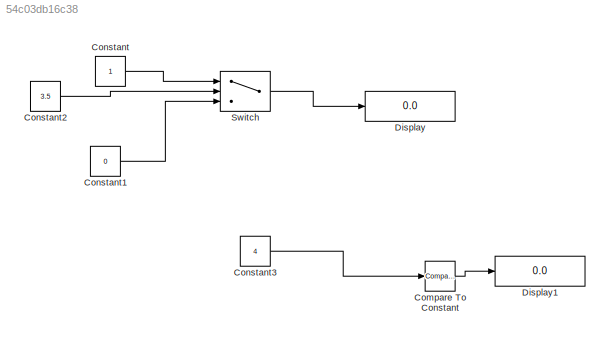
MODEL slx_54c03db16c38
KIND model
CONFIG AbsTol = auto
CONFIG EnableMultiTasking = off
CONFIG FixedStep = auto
CONFIG MaxStep = auto
CONFIG MinStep = auto
CONFIG RelTol = 1e-3
CONFIG SampleTimeConstraint = Unconstrained
CONFIG SolverName = VariableStepAuto
CONFIG StartTime = 0.0
CONFIG StopTime = 10.0
BLOCK [Reference] Compare To Constant  REF=simulink/Logic and Bit
Operations/Compare
To Constant
  Ports = [1, 1]
  SourceBlock = simulink/Logic and Bit\nOperations/Compare\nTo Constant
  SourceProductBaseCode = SL
  SourceType = Compare To Constant
BLOCK [Constant] Constant
BLOCK [Constant] Constant1
  Value = 0
BLOCK [Constant] Constant2
  Value = 3.5
BLOCK [Constant] Constant3
  Value = 4
BLOCK [Display] Display
  Decimation = 1
  Ports = [1]
BLOCK [Display] Display1
  Decimation = 1
  Ports = [1]
BLOCK [Switch] Switch
  InputSameDT = off
  SaturateOnIntegerOverflow = off
  Threshold = 3.5
LINE Compare To Constant:1 -> Display1:1
LINE Constant1:1 -> Switch:3
LINE Constant2:1 -> Switch:2
LINE Constant3:1 -> Compare To Constant:1
LINE Constant:1 -> Switch:1
LINE Switch:1 -> Display:1
